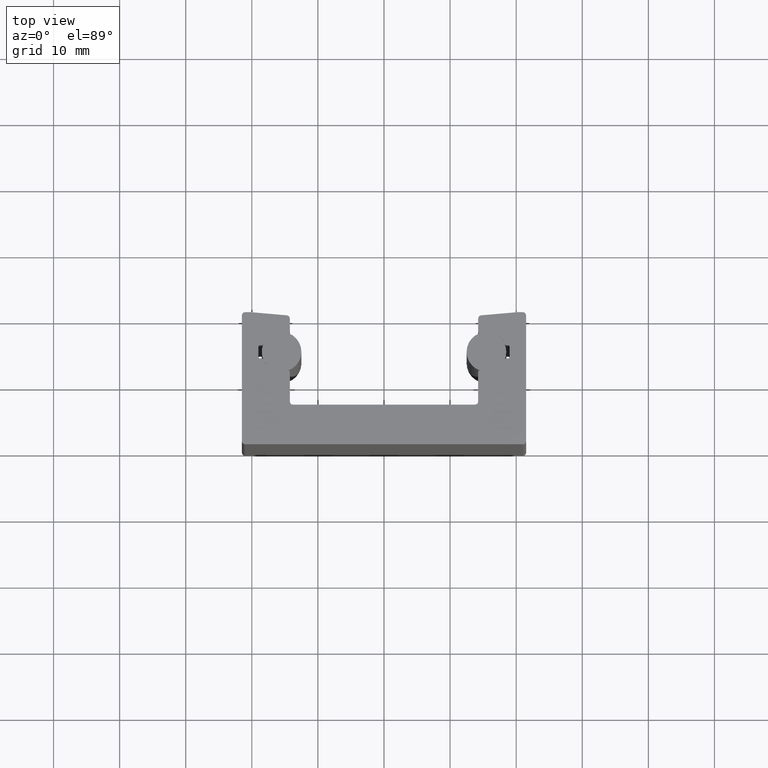
[diagram: clean part render]
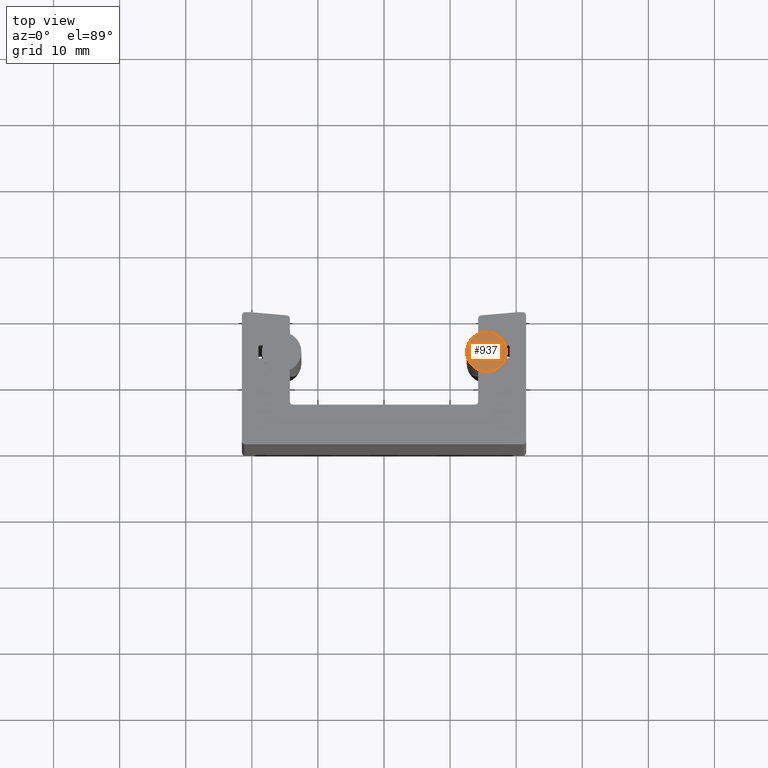
[diagram: same view with one face highlighted and labeled with its STEP entity id]
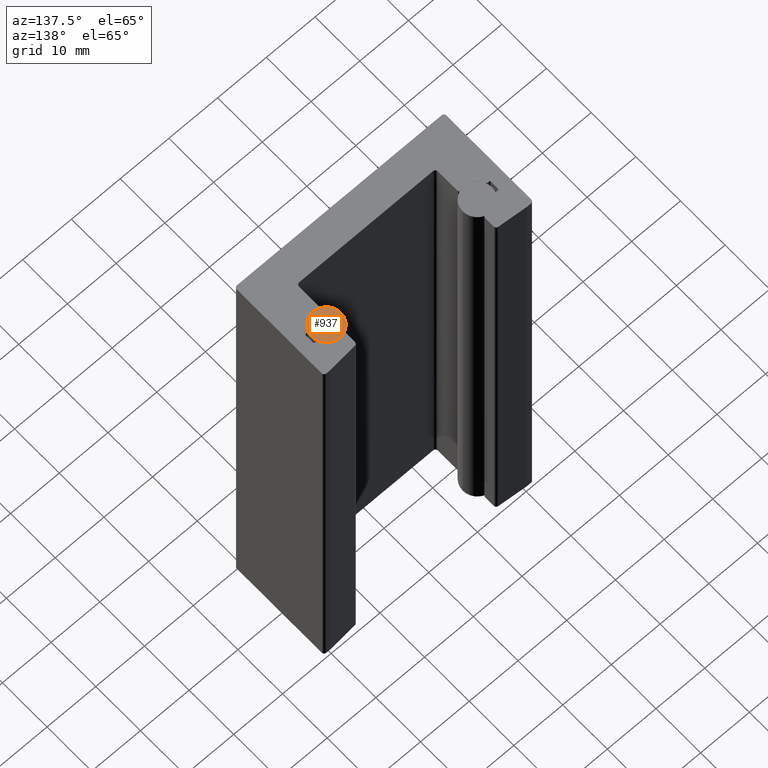
[diagram: same view with one face highlighted and labeled with its STEP entity id]
A machine part, top view. The second image highlights one B-rep face of the part: STEP entity #937.
A second angle (auxiliary view) of the same face is appended — the face is thin or edge-on in the first view.
In plain terms, the highlighted planar face has unit normal (0, 0, 1).
Its self-contained STEP definition (entity closure, byte-faithful):
#52=PLANE('',#1107);
#101=FACE_OUTER_BOUND('',#150,.T.);
#150=EDGE_LOOP('',(#861));
#366=CIRCLE('',#1106,3.);
#456=VERTEX_POINT('',#1683);
#590=EDGE_CURVE('',#456,#456,#366,.T.);
#861=ORIENTED_EDGE('',*,*,#590,.T.);
#937=ADVANCED_FACE('',(#101),#52,.T.);
#1106=AXIS2_PLACEMENT_3D('',#1684,#1399,#1400);
#1107=AXIS2_PLACEMENT_3D('',#1686,#1402,#1403);
#1399=DIRECTION('center_axis',(0.,0.,1.));
#1400=DIRECTION('ref_axis',(-1.,0.,0.));
#1402=DIRECTION('center_axis',(0.,0.,1.));
#1403=DIRECTION('ref_axis',(1.,0.,0.));
#1683=CARTESIAN_POINT('',(3.,3.67394039744206E-16,50.));
#1684=CARTESIAN_POINT('Origin',(0.,0.,50.));
#1686=CARTESIAN_POINT('Origin',(-3.39011454596783E-16,7.70988211545247E-17,
50.));